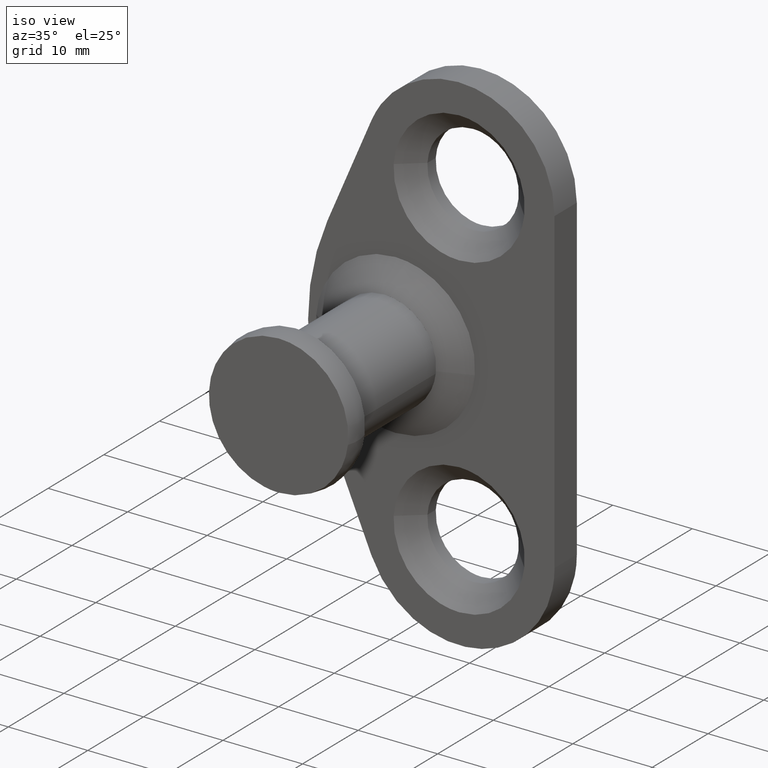
[diagram: clean part render]
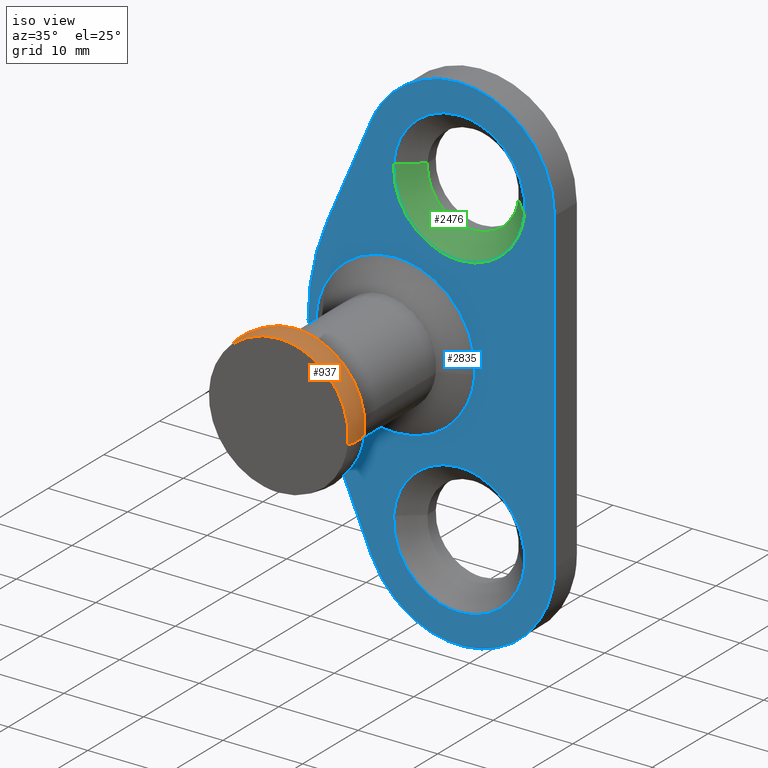
[diagram: same view with three faces highlighted in distinct colors, each labeled with its STEP entity id]
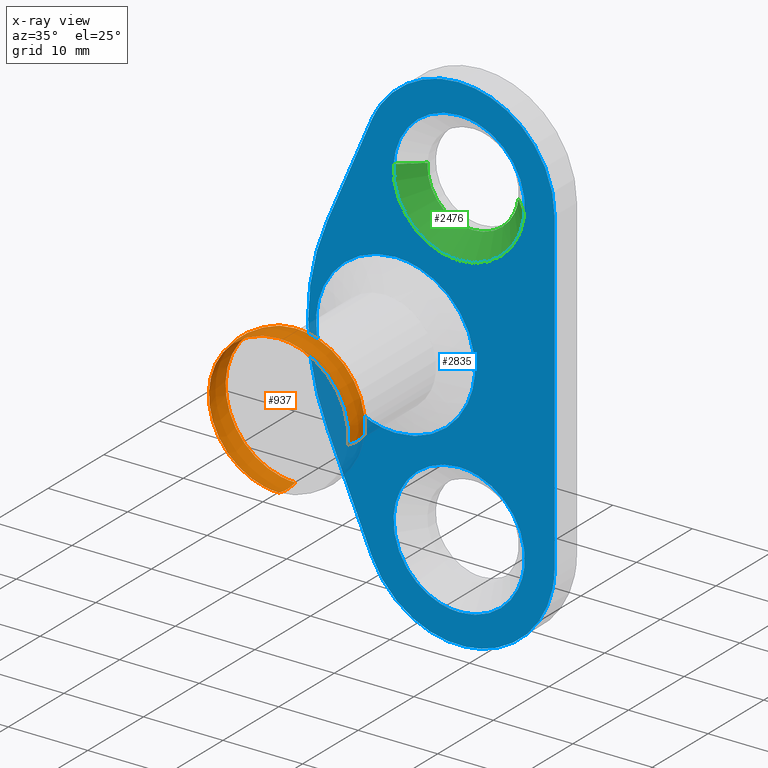
[diagram: x-ray of the same camera — body ghosted, the three highlighted faces saturated]
A machine part, iso view with three faces highlighted in distinct colors.
The next image is the same camera in x-ray (body ghosted, the three faces saturated) — at least one of them is partly hidden behind the body in this view.
Their STEP definitions:

[orange] entity #937 — the highlighted face is a freeform B-spline surface patch.
#780=CARTESIAN_POINT('',(8.661710660135714,-0.149631777815323,-1.006851718927271));
#781=CARTESIAN_POINT('',(8.939804774697754,0.651426895714342,-1.039177843437411));
#782=CARTESIAN_POINT('',(8.939804774697759,1.500000000000000,-1.039177843437411));
#783=CARTESIAN_POINT('',(8.939804774697759,2.348572716536395,-1.039177843437411));
#784=CARTESIAN_POINT('',(8.661710907166555,3.149631066235190,-1.006851747642549));
#785=CARTESIAN_POINT('',(8.720033368274196,-0.149631777815323,-0.505115054714864));
#786=CARTESIAN_POINT('',(9.0,0.651426895714342,-0.521332350512954));
#787=CARTESIAN_POINT('',(9.0,1.500000000000000,-0.521332350512954));
#788=CARTESIAN_POINT('',(9.0,2.348572716536395,-0.521332350512954));
#789=CARTESIAN_POINT('',(8.720033616968395,3.149631066235191,-0.505115069120679));
#790=CARTESIAN_POINT('',(8.720033368274198,-0.149631777815323,0.0));
#791=CARTESIAN_POINT('',(9.000000000000002,0.651426895714342,0.0));
#792=CARTESIAN_POINT('',(9.000000000000002,1.500000000000000,0.0));
#793=CARTESIAN_POINT('',(9.000000000000002,2.348572716536395,0.0));
#794=CARTESIAN_POINT('',(8.720033616968397,3.149631066235190,0.0));
#795=CARTESIAN_POINT('',(8.720033368274198,-0.149631777815323,8.720033368274198));
#796=CARTESIAN_POINT('',(9.000000000000002,0.651426895714342,9.000000000000002));
#797=CARTESIAN_POINT('',(9.000000000000002,1.500000000000000,9.000000000000002));
#798=CARTESIAN_POINT('',(9.000000000000002,2.348572716536395,9.000000000000002));
#799=CARTESIAN_POINT('',(8.720033616968395,3.149631066235190,8.720033616968395));
#800=CARTESIAN_POINT('',(0.0,-0.149631777815323,8.720033368274198));
#801=CARTESIAN_POINT('',(0.0,0.651426895714342,9.000000000000002));
#802=CARTESIAN_POINT('',(0.0,1.500000000000000,9.000000000000002));
#803=CARTESIAN_POINT('',(0.0,2.348572716536395,9.000000000000002));
#804=CARTESIAN_POINT('',(0.0,3.149631066235190,8.720033616968397));
#805=CARTESIAN_POINT('',(-8.720033368274198,-0.149631777815323,8.720033368274198));
#806=CARTESIAN_POINT('',(-9.000000000000002,0.651426895714342,9.000000000000002));
#807=CARTESIAN_POINT('',(-9.000000000000002,1.500000000000000,9.000000000000002));
#808=CARTESIAN_POINT('',(-9.000000000000002,2.348572716536395,9.000000000000002));
#809=CARTESIAN_POINT('',(-8.720033616968395,3.149631066235190,8.720033616968395));
#810=CARTESIAN_POINT('',(-8.720033368274198,-0.149631777815323,0.0));
#811=CARTESIAN_POINT('',(-9.000000000000002,0.651426895714342,0.0));
#812=CARTESIAN_POINT('',(-9.000000000000002,1.500000000000000,0.0));
#813=CARTESIAN_POINT('',(-9.000000000000002,2.348572716536395,0.0));
#814=CARTESIAN_POINT('',(-8.720033616968397,3.149631066235190,0.0));
#815=CARTESIAN_POINT('',(-8.720033368274198,-0.149631777815323,-8.720033368274198));
#816=CARTESIAN_POINT('',(-9.000000000000002,0.651426895714342,-9.000000000000002));
#817=CARTESIAN_POINT('',(-9.000000000000002,1.500000000000000,-9.000000000000002));
#818=CARTESIAN_POINT('',(-9.000000000000002,2.348572716536395,-9.000000000000002));
#819=CARTESIAN_POINT('',(-8.720033616968395,3.149631066235190,-8.720033616968395));
#820=CARTESIAN_POINT('',(0.0,-0.149631777815323,-8.720033368274198));
#821=CARTESIAN_POINT('',(0.0,0.651426895714342,-9.000000000000002));
#822=CARTESIAN_POINT('',(0.0,1.500000000000000,-9.000000000000002));
#823=CARTESIAN_POINT('',(0.0,2.348572716536395,-9.000000000000002));
#824=CARTESIAN_POINT('',(0.0,3.149631066235190,-8.720033616968397));
#832=(BOUNDED_SURFACE()B_SPLINE_SURFACE(2,2,((#780,#785,#790,#795,#800,#805,#810,#815,#820),(#781,#786,#791,#796,#801,#806,#811,#816,#821),(#782,#787,#792,#797,#802,#807,#812,#817,#822),(#783,#788,#793,#798,#803,#808,#813,#818,#823),(#784,#789,#794,#799,#804,#809,#814,#819,#824)),.UNSPECIFIED.,.F.,.F.,.U.)B_SPLINE_SURFACE_WITH_KNOTS((3,2,3),(3,2,2,2,3),(0.0,1.740011391470845,3.480022029154516),(0.0,1.192934810768867,16.104623056200289,31.016311301631720,45.927999547063138),.UNSPECIFIED.)GEOMETRIC_REPRESENTATION_ITEM()RATIONAL_B_SPLINE_SURFACE(((0.884835110487293,0.903035496784282,0.924702622467342,0.653863494927642,0.924702622467342,0.653863494927642,0.924702622467342,0.653863494927642,0.924702622467342),(0.907183579143327,0.925843656469599,0.948058033356251,0.670378264344587,0.948058033356251,0.670378264344587,0.948058033356251,0.670378264344587,0.948058033356251),(0.956886126402807,0.976568547383107,1.0,0.707106781186548,1.0,0.707106781186548,1.0,0.707106781186548,1.0),(0.907183600674877,0.925843678444037,0.948058055857936,0.670378280255681,0.948058055857936,0.670378280255681,0.948058055857936,0.670378280255681,0.948058055857936),(0.884835129850377,0.903035516545650,0.924702642702858,0.653863509236312,0.924702642702858,0.653863509236312,0.924702642702858,0.653863509236312,0.924702642702858)))REPRESENTATION_ITEM('')SURFACE());
#833=CARTESIAN_POINT('',(8.711041115658869,0.000000010307190,-1.012586191310067));
#834=VERTEX_POINT('',#833);
#835=CARTESIAN_POINT('',(0.0,0.000000010299483,8.769696010323770));
#836=VERTEX_POINT('',#835);
#837=CARTESIAN_POINT('',(8.711041115658869,0.000000010307190,-1.012586191310067));
#838=CARTESIAN_POINT('',(8.769696010323770,0.000000010299483,-0.507991912379843));
#839=CARTESIAN_POINT('',(8.769696010323770,0.000000010299483,-2.965939E-016));
#840=CARTESIAN_POINT('',(8.769696010323770,0.000000010299483,8.769696010323770));
#841=CARTESIAN_POINT('',(0.0,0.000000010299483,8.769696010323770));
#849=(BOUNDED_CURVE()B_SPLINE_CURVE(2,(#837,#838,#839,#840,#841),.UNSPECIFIED.,.F.,.U.)B_SPLINE_CURVE_WITH_KNOTS((3,2,3),(0.229999999998251,0.250000000000000,0.500000000000000),.UNSPECIFIED.)CURVE()GEOMETRIC_REPRESENTATION_ITEM()RATIONAL_B_SPLINE_CURVE((0.956886118187217,0.976568542492875,1.0,0.707106781186547,1.0))REPRESENTATION_ITEM(''));
#850=EDGE_CURVE('',#834,#836,#849,.T.);
#851=ORIENTED_EDGE('',*,*,#850,.F.);
#852=CARTESIAN_POINT('',(8.711041108606544,3.000000001005166,-1.012586190489180));
#853=VERTEX_POINT('',#852);
#854=CARTESIAN_POINT('',(8.711041115658869,0.000000010307190,-1.012586191310067));
#855=CARTESIAN_POINT('',(8.939804749065740,0.732320029149684,-1.039178063943664));
#856=CARTESIAN_POINT('',(8.939804749065740,1.500000000000000,-1.039178063943664));
#857=CARTESIAN_POINT('',(8.939804749065740,2.267679977462786,-1.039178063943664));
#858=CARTESIAN_POINT('',(8.711041108606544,3.000000001005167,-1.012586190489180));
#866=(BOUNDED_CURVE()B_SPLINE_CURVE(2,(#854,#855,#856,#857,#858),.UNSPECIFIED.,.F.,.U.)B_SPLINE_CURVE_WITH_KNOTS((3,2,3),(0.437453908709499,0.500000000000000,0.562546091803805),.UNSPECIFIED.)CURVE()GEOMETRIC_REPRESENTATION_ITEM()RATIONAL_B_SPLINE_CURVE((0.889120430718527,0.911697885028001,0.956886118190660,0.911697884657150,0.889120430347950))REPRESENTATION_ITEM(''));
#867=EDGE_CURVE('',#834,#853,#866,.T.);
#868=ORIENTED_EDGE('',*,*,#867,.T.);
#869=CARTESIAN_POINT('',(0.0,3.0,8.769696000000000));
#870=VERTEX_POINT('',#869);
#871=CARTESIAN_POINT('',(8.711041108606544,3.000000001005166,-1.012586190489180));
#872=CARTESIAN_POINT('',(8.769696000000000,3.000000000000001,-0.507991911780721));
#873=CARTESIAN_POINT('',(8.769696000000000,3.0,-2.965939E-016));
#874=CARTESIAN_POINT('',(8.769696000000000,3.0,8.769696000000000));
#875=CARTESIAN_POINT('',(0.0,3.0,8.769696000000000));
#883=(BOUNDED_CURVE()B_SPLINE_CURVE(2,(#871,#872,#873,#874,#875),.UNSPECIFIED.,.F.,.U.)B_SPLINE_CURVE_WITH_KNOTS((3,2,3),(0.229999999998293,0.250000000000000,0.500000000000000),.UNSPECIFIED.)CURVE()GEOMETRIC_REPRESENTATION_ITEM()RATIONAL_B_SPLINE_CURVE((0.956886118187301,0.976568542492924,1.0,0.707106781186548,1.0))REPRESENTATION_ITEM(''));
#884=EDGE_CURVE('',#853,#870,#883,.T.);
#885=ORIENTED_EDGE('',*,*,#884,.T.);
#886=CARTESIAN_POINT('',(0.0,2.999994857243486,-8.769697619081097));
#887=VERTEX_POINT('',#886);
#888=CARTESIAN_POINT('',(0.0,3.0,8.769696000000000));
#889=CARTESIAN_POINT('',(-8.769696000000000,3.0,8.769696000000000));
#890=CARTESIAN_POINT('',(-8.769696000000000,2.999997428621743,-0.000000809540549));
#891=CARTESIAN_POINT('',(-8.769696000000000,2.999994857243487,-8.769697619081097));
#892=CARTESIAN_POINT('',(0.0,2.999994857243486,-8.769697619081097));
#900=(BOUNDED_CURVE()B_SPLINE_CURVE(2,(#888,#889,#890,#891,#892),.UNSPECIFIED.,.F.,.U.)B_SPLINE_CURVE_WITH_KNOTS((3,2,3),(0.500000000000000,0.750000000000000,1.0),.UNSPECIFIED.)CURVE()GEOMETRIC_REPRESENTATION_ITEM()RATIONAL_B_SPLINE_CURVE((1.0,0.707106781186548,1.0,0.707106781186548,1.0))REPRESENTATION_ITEM(''));
#901=EDGE_CURVE('',#870,#887,#900,.T.);
#902=ORIENTED_EDGE('',*,*,#901,.T.);
#903=CARTESIAN_POINT('',(0.0,0.000009323747539,-8.769698939247675));
#904=VERTEX_POINT('',#903);
#905=CARTESIAN_POINT('',(0.0,0.000009323747539,-8.769698939247675));
#906=CARTESIAN_POINT('',(0.0,0.732325025785579,-9.000000000000004));
#907=CARTESIAN_POINT('',(0.0,1.500000000000000,-9.000000000000002));
#908=CARTESIAN_POINT('',(0.0,2.267677218122616,-9.000000000000002));
#909=CARTESIAN_POINT('',(0.0,2.999994857243486,-8.769697619081097));
#917=(BOUNDED_CURVE()B_SPLINE_CURVE(2,(#905,#906,#907,#908,#909),.UNSPECIFIED.,.F.,.U.)B_SPLINE_CURVE_WITH_KNOTS((3,2,3),(0.437454296581557,0.500000000000000,0.562545877605527),.UNSPECIFIED.)CURVE()GEOMETRIC_REPRESENTATION_ITEM()RATIONAL_B_SPLINE_CURVE((0.929181324548143,0.952776038784309,1.0,0.952775907267616,0.929181193127805))REPRESENTATION_ITEM(''));
#918=EDGE_CURVE('',#904,#887,#917,.T.);
#919=ORIENTED_EDGE('',*,*,#918,.F.);
#920=CARTESIAN_POINT('',(0.0,0.000000010299483,8.769696010323770));
#921=CARTESIAN_POINT('',(-8.769696010323770,0.000000010299483,8.769696010323770));
#922=CARTESIAN_POINT('',(-8.769696010323770,0.000004667023511,-0.000001464461953));
#923=CARTESIAN_POINT('',(-8.769696010323770,0.000009323747539,-8.769698939247675));
#924=CARTESIAN_POINT('',(0.0,0.000009323747539,-8.769698939247675));
#932=(BOUNDED_CURVE()B_SPLINE_CURVE(2,(#920,#921,#922,#923,#924),.UNSPECIFIED.,.F.,.U.)B_SPLINE_CURVE_WITH_KNOTS((3,2,3),(0.500000000000000,0.750000000000000,1.0),.UNSPECIFIED.)CURVE()GEOMETRIC_REPRESENTATION_ITEM()RATIONAL_B_SPLINE_CURVE((1.0,0.707106781186547,1.0,0.707106781186547,1.0))REPRESENTATION_ITEM(''));
#933=EDGE_CURVE('',#836,#904,#932,.T.);
#934=ORIENTED_EDGE('',*,*,#933,.F.);
#935=EDGE_LOOP('',(#851,#868,#885,#902,#919,#934));
#936=FACE_OUTER_BOUND('',#935,.T.);
#937=ADVANCED_FACE('',(#936),#832,.T.);

[blue] entity #2835 — the highlighted face is a freeform B-spline surface patch.
#1691=CARTESIAN_POINT('',(-9.969173337332013,21.000000000000931,0.784590957289844));
#1692=VERTEX_POINT('',#1691);
#1698=CARTESIAN_POINT('',(0.0,21.0,-10.0));
#1699=VERTEX_POINT('',#1698);
#1700=CARTESIAN_POINT('',(-9.969173337332013,21.000000000000931,0.784590957289844));
#1701=CARTESIAN_POINT('',(-10.0,21.000000000000004,0.392901070088013));
#1702=CARTESIAN_POINT('',(-10.0,21.0,-2.965939E-016));
#1703=CARTESIAN_POINT('',(-10.000000000000002,21.000000000000004,-10.000000000000002));
#1704=CARTESIAN_POINT('',(0.0,21.0,-10.0));
#1712=(BOUNDED_CURVE()B_SPLINE_CURVE(2,(#1700,#1701,#1702,#1703,#1704),.UNSPECIFIED.,.F.,.U.)B_SPLINE_CURVE_WITH_KNOTS((3,2,3),(0.736331300632380,0.750000000000000,1.0),.UNSPECIFIED.)CURVE()GEOMETRIC_REPRESENTATION_ITEM()RATIONAL_B_SPLINE_CURVE((0.969723356171007,0.983986122580897,1.0,0.707106781186548,1.0))REPRESENTATION_ITEM(''));
#1713=EDGE_CURVE('',#1692,#1699,#1712,.T.);
#1715=CARTESIAN_POINT('',(9.969173337332013,21.000000000000931,-0.784590957289845));
#1716=VERTEX_POINT('',#1715);
#1717=CARTESIAN_POINT('',(0.0,21.0,-10.0));
#1718=CARTESIAN_POINT('',(9.243904916561121,20.999999999999996,-9.999999999999998));
#1719=CARTESIAN_POINT('',(9.969173337332013,21.000000000000927,-0.784590957289845));
#1727=(BOUNDED_CURVE()B_SPLINE_CURVE(2,(#1717,#1718,#1719),.UNSPECIFIED.,.F.,.U.)B_SPLINE_CURVE_WITH_KNOTS((3,3),(0.0,0.236331300632380),.UNSPECIFIED.)CURVE()GEOMETRIC_REPRESENTATION_ITEM()RATIONAL_B_SPLINE_CURVE((1.0,0.723120658605651,0.969723356171007))REPRESENTATION_ITEM(''));
#1728=EDGE_CURVE('',#1699,#1716,#1727,.T.);
#1774=CARTESIAN_POINT('',(0.0,21.0,10.0));
#1775=VERTEX_POINT('',#1774);
#1776=CARTESIAN_POINT('',(9.969173337332013,21.000000000000931,-0.784590957289845));
#1777=CARTESIAN_POINT('',(10.0,21.000000000000004,-0.392901070088014));
#1778=CARTESIAN_POINT('',(10.0,21.0,-2.965939E-016));
#1779=CARTESIAN_POINT('',(10.000000000000002,21.000000000000004,10.000000000000002));
#1780=CARTESIAN_POINT('',(0.0,21.0,10.0));
#1788=(BOUNDED_CURVE()B_SPLINE_CURVE(2,(#1776,#1777,#1778,#1779,#1780),.UNSPECIFIED.,.F.,.U.)B_SPLINE_CURVE_WITH_KNOTS((3,2,3),(0.236331300632380,0.250000000000000,0.500000000000000),.UNSPECIFIED.)CURVE()GEOMETRIC_REPRESENTATION_ITEM()RATIONAL_B_SPLINE_CURVE((0.969723356171007,0.983986122580897,1.0,0.707106781186548,1.0))REPRESENTATION_ITEM(''));
#1789=EDGE_CURVE('',#1716,#1775,#1788,.T.);
#1791=CARTESIAN_POINT('',(0.0,21.0,10.0));
#1792=CARTESIAN_POINT('',(-9.243904916561130,21.000000000000004,10.000000000000002));
#1793=CARTESIAN_POINT('',(-9.969173337332013,21.000000000000931,0.784590957289844));
#1801=(BOUNDED_CURVE()B_SPLINE_CURVE(2,(#1791,#1792,#1793),.UNSPECIFIED.,.F.,.U.)B_SPLINE_CURVE_WITH_KNOTS((3,3),(0.500000000000000,0.736331300632380),.UNSPECIFIED.)CURVE()GEOMETRIC_REPRESENTATION_ITEM()RATIONAL_B_SPLINE_CURVE((1.0,0.723120658605650,0.969723356171008))REPRESENTATION_ITEM(''));
#1802=EDGE_CURVE('',#1775,#1692,#1801,.T.);
#2045=CARTESIAN_POINT('',(16.192328592501092,20.999999999989392,-20.973782436001819));
#2046=VERTEX_POINT('',#2045);
#2052=CARTESIAN_POINT('',(8.0,21.0,-11.749999999999909));
#2053=VERTEX_POINT('',#2052);
#2054=CARTESIAN_POINT('',(16.192328592501092,20.999999999989395,-20.973782436001819));
#2055=CARTESIAN_POINT('',(16.250000000000096,20.999999999999993,-20.488598987211432));
#2056=CARTESIAN_POINT('',(16.250000000000089,21.0,-20.0));
#2057=CARTESIAN_POINT('',(16.250000000000089,21.000000000000007,-11.749999999999909));
#2058=CARTESIAN_POINT('',(8.0,21.0,-11.749999999999909));
#2066=(BOUNDED_CURVE()B_SPLINE_CURVE(2,(#2054,#2055,#2056,#2057,#2058),.UNSPECIFIED.,.F.,.U.)B_SPLINE_CURVE_WITH_KNOTS((3,2,3),(0.229562473512249,0.250000000000000,0.500000000000000),.UNSPECIFIED.)CURVE()GEOMETRIC_REPRESENTATION_ITEM()RATIONAL_B_SPLINE_CURVE((0.956026754181230,0.976055948329669,1.0,0.707106781186547,1.0))REPRESENTATION_ITEM(''));
#2067=EDGE_CURVE('',#2046,#2053,#2066,.T.);
#2069=CARTESIAN_POINT('',(-0.234612086995449,20.999999999972200,-19.496349548626540));
#2070=VERTEX_POINT('',#2069);
#2071=CARTESIAN_POINT('',(8.0,21.0,-11.749999999999909));
#2072=CARTESIAN_POINT('',(0.239174948423016,20.999999999999993,-11.749999999999909));
#2073=CARTESIAN_POINT('',(-0.234612086995449,20.999999999972196,-19.496349548626540));
#2081=(BOUNDED_CURVE()B_SPLINE_CURVE(2,(#2071,#2072,#2073),.UNSPECIFIED.,.F.,.U.)B_SPLINE_CURVE_WITH_KNOTS((3,3),(0.500000000000000,0.739332962233201),.UNSPECIFIED.)CURVE()GEOMETRIC_REPRESENTATION_ITEM()RATIONAL_B_SPLINE_CURVE((1.0,0.719603993293437,0.976072041654411))REPRESENTATION_ITEM(''));
#2082=EDGE_CURVE('',#2053,#2070,#2081,.T.);
#2115=CARTESIAN_POINT('',(8.0,21.0,-28.250000000000089));
#2116=VERTEX_POINT('',#2115);
#2117=CARTESIAN_POINT('',(-0.234612086995449,20.999999999972200,-19.496349548626547));
#2118=CARTESIAN_POINT('',(-0.250000000000090,21.000000000000004,-19.747939702576872));
#2119=CARTESIAN_POINT('',(-0.250000000000090,21.0,-20.0));
#2120=CARTESIAN_POINT('',(-0.250000000000090,21.000000000000007,-28.250000000000089));
#2121=CARTESIAN_POINT('',(8.0,21.0,-28.250000000000089));
#2129=(BOUNDED_CURVE()B_SPLINE_CURVE(2,(#2117,#2118,#2119,#2120,#2121),.UNSPECIFIED.,.F.,.U.)B_SPLINE_CURVE_WITH_KNOTS((3,2,3),(0.739332962233202,0.750000000000000,1.0),.UNSPECIFIED.)CURVE()GEOMETRIC_REPRESENTATION_ITEM()RATIONAL_B_SPLINE_CURVE((0.976072041654414,0.987502787893111,1.0,0.707106781186547,1.0))REPRESENTATION_ITEM(''));
#2130=EDGE_CURVE('',#2070,#2116,#2129,.T.);
#2132=CARTESIAN_POINT('',(8.0,21.0,-28.250000000000089));
#2133=CARTESIAN_POINT('',(15.327439838950616,21.0,-28.250000000000085));
#2134=CARTESIAN_POINT('',(16.192328592501092,20.999999999989395,-20.973782436001819));
#2142=(BOUNDED_CURVE()B_SPLINE_CURVE(2,(#2132,#2133,#2134),.UNSPECIFIED.,.F.,.U.)B_SPLINE_CURVE_WITH_KNOTS((3,3),(0.0,0.229562473512249),.UNSPECIFIED.)CURVE()GEOMETRIC_REPRESENTATION_ITEM()RATIONAL_B_SPLINE_CURVE((1.0,0.731050832856878,0.956026754181230))REPRESENTATION_ITEM(''));
#2143=EDGE_CURVE('',#2116,#2046,#2142,.T.);
#2373=CARTESIAN_POINT('',(16.192328592501081,20.999999999989392,19.026217563998181));
#2374=VERTEX_POINT('',#2373);
#2380=CARTESIAN_POINT('',(8.0,21.0,28.250000000000089));
#2381=VERTEX_POINT('',#2380);
#2382=CARTESIAN_POINT('',(16.192328592501081,20.999999999989395,19.026217563998184));
#2383=CARTESIAN_POINT('',(16.250000000000096,20.999999999999993,19.511401012788571));
#2384=CARTESIAN_POINT('',(16.250000000000089,21.0,20.0));
#2385=CARTESIAN_POINT('',(16.250000000000089,21.000000000000007,28.250000000000089));
#2386=CARTESIAN_POINT('',(8.0,21.0,28.250000000000089));
#2394=(BOUNDED_CURVE()B_SPLINE_CURVE(2,(#2382,#2383,#2384,#2385,#2386),.UNSPECIFIED.,.F.,.U.)B_SPLINE_CURVE_WITH_KNOTS((3,2,3),(0.229562473512249,0.250000000000000,0.500000000000000),.UNSPECIFIED.)CURVE()GEOMETRIC_REPRESENTATION_ITEM()RATIONAL_B_SPLINE_CURVE((0.956026754181230,0.976055948329669,1.0,0.707106781186547,1.0))REPRESENTATION_ITEM(''));
#2395=EDGE_CURVE('',#2374,#2381,#2394,.T.);
#2397=CARTESIAN_POINT('',(-0.234612086995450,20.999999999972189,20.503650451373460));
#2398=VERTEX_POINT('',#2397);
#2399=CARTESIAN_POINT('',(8.0,21.0,28.250000000000089));
#2400=CARTESIAN_POINT('',(0.239174948423016,20.999999999999993,28.250000000000089));
#2401=CARTESIAN_POINT('',(-0.234612086995450,20.999999999972196,20.503650451373456));
#2409=(BOUNDED_CURVE()B_SPLINE_CURVE(2,(#2399,#2400,#2401),.UNSPECIFIED.,.F.,.U.)B_SPLINE_CURVE_WITH_KNOTS((3,3),(0.500000000000000,0.739332962233201),.UNSPECIFIED.)CURVE()GEOMETRIC_REPRESENTATION_ITEM()RATIONAL_B_SPLINE_CURVE((1.0,0.719603993293437,0.976072041654411))REPRESENTATION_ITEM(''));
#2410=EDGE_CURVE('',#2381,#2398,#2409,.T.);
#2443=CARTESIAN_POINT('',(8.0,21.0,11.749999999999909));
#2444=VERTEX_POINT('',#2443);
#2445=CARTESIAN_POINT('',(-0.234612086995450,20.999999999972189,20.503650451373456));
#2446=CARTESIAN_POINT('',(-0.250000000000090,21.000000000000004,20.252060297423135));
#2447=CARTESIAN_POINT('',(-0.250000000000090,21.0,20.0));
#2448=CARTESIAN_POINT('',(-0.250000000000090,21.000000000000007,11.749999999999909));
#2449=CARTESIAN_POINT('',(8.0,21.0,11.749999999999909));
#2457=(BOUNDED_CURVE()B_SPLINE_CURVE(2,(#2445,#2446,#2447,#2448,#2449),.UNSPECIFIED.,.F.,.U.)B_SPLINE_CURVE_WITH_KNOTS((3,2,3),(0.739332962233202,0.750000000000000,1.0),.UNSPECIFIED.)CURVE()GEOMETRIC_REPRESENTATION_ITEM()RATIONAL_B_SPLINE_CURVE((0.976072041654414,0.987502787893111,1.0,0.707106781186547,1.0))REPRESENTATION_ITEM(''));
#2458=EDGE_CURVE('',#2398,#2444,#2457,.T.);
#2460=CARTESIAN_POINT('',(8.0,21.0,11.749999999999909));
#2461=CARTESIAN_POINT('',(15.327439838950616,21.0,11.749999999999911));
#2462=CARTESIAN_POINT('',(16.192328592501081,20.999999999989395,19.026217563998184));
#2470=(BOUNDED_CURVE()B_SPLINE_CURVE(2,(#2460,#2461,#2462),.UNSPECIFIED.,.F.,.U.)B_SPLINE_CURVE_WITH_KNOTS((3,3),(0.0,0.229562473512249),.UNSPECIFIED.)CURVE()GEOMETRIC_REPRESENTATION_ITEM()RATIONAL_B_SPLINE_CURVE((1.0,0.731050832856878,0.956026754181230))REPRESENTATION_ITEM(''));
#2471=EDGE_CURVE('',#2444,#2374,#2470,.T.);
#2615=CARTESIAN_POINT('',(20.0,21.0,20.0));
#2616=VERTEX_POINT('',#2615);
#2622=CARTESIAN_POINT('',(20.0,21.0,-19.999999620397048));
#2623=VERTEX_POINT('',#2622);
#2624=CARTESIAN_POINT('',(20.0,21.0,-19.999999620397048));
#2625=CARTESIAN_POINT('',(20.0,21.0,20.0));
#2626=QUASI_UNIFORM_CURVE('',1,(#2624,#2625),.UNSPECIFIED.,.F.,.U.);
#2627=EDGE_CURVE('',#2623,#2616,#2626,.T.);
#2657=CARTESIAN_POINT('',(-3.026028000000000,21.0,-24.735684000000099));
#2658=VERTEX_POINT('',#2657);
#2659=CARTESIAN_POINT('',(-3.026027999999988,21.0,-24.735684000000091));
#2660=CARTESIAN_POINT('',(0.834803822286927,21.000000000000004,-33.724804972499285));
#2661=CARTESIAN_POINT('',(10.417401911143459,21.0,-31.753984816916571));
#2662=CARTESIAN_POINT('',(20.0,21.000000000000004,-29.783164661333853));
#2663=CARTESIAN_POINT('',(20.0,21.0,-19.999999620397048));
#2671=(BOUNDED_CURVE()B_SPLINE_CURVE(2,(#2659,#2660,#2661,#2662,#2663),.UNSPECIFIED.,.F.,.U.)B_SPLINE_CURVE_WITH_KNOTS((3,2,3),(0.0,0.500000000000000,1.0),.UNSPECIFIED.)CURVE()GEOMETRIC_REPRESENTATION_ITEM()RATIONAL_B_SPLINE_CURVE((1.0,0.775064564814428,1.0,0.775064564814428,1.0))REPRESENTATION_ITEM(''));
#2672=EDGE_CURVE('',#2658,#2623,#2671,.T.);
#2689=CARTESIAN_POINT('',(-8.565069783469122,21.0,-11.839211504146100));
#2690=VERTEX_POINT('',#2689);
#2691=CARTESIAN_POINT('',(-8.565069783469122,21.0,-11.839211504146100));
#2692=CARTESIAN_POINT('',(-3.026028000000000,21.0,-24.735684000000099));
#2693=QUASI_UNIFORM_CURVE('',1,(#2691,#2692),.UNSPECIFIED.,.F.,.U.);
#2694=EDGE_CURVE('',#2690,#2658,#2693,.T.);
#2720=CARTESIAN_POINT('',(-8.565070000000109,21.0,11.839212000000000));
#2721=VERTEX_POINT('',#2720);
#2722=CARTESIAN_POINT('',(-8.565070000000102,21.0,11.839211999999989));
#2723=CARTESIAN_POINT('',(-13.650017496232248,21.000000000000004,0.000000201426849));
#2724=CARTESIAN_POINT('',(-8.565069783469118,21.0,-11.839211504146110));
#2732=(BOUNDED_CURVE()B_SPLINE_CURVE(2,(#2722,#2723,#2724),.UNSPECIFIED.,.F.,.U.)CURVE()GEOMETRIC_REPRESENTATION_ITEM()QUASI_UNIFORM_CURVE()RATIONAL_B_SPLINE_CURVE((1.0,0.918835655169432,1.0))REPRESENTATION_ITEM(''));
#2733=EDGE_CURVE('',#2721,#2690,#2732,.T.);
#2750=CARTESIAN_POINT('',(-3.026028000000000,21.0,24.735684999999901));
#2751=VERTEX_POINT('',#2750);
#2752=CARTESIAN_POINT('',(-3.026028000000000,21.0,24.735684999999901));
#2753=CARTESIAN_POINT('',(-8.565070000000109,21.0,11.839212000000000));
#2754=QUASI_UNIFORM_CURVE('',1,(#2752,#2753),.UNSPECIFIED.,.F.,.U.);
#2755=EDGE_CURVE('',#2751,#2721,#2754,.T.);
#2785=CARTESIAN_POINT('',(19.999999999999979,21.0,20.0));
#2786=CARTESIAN_POINT('',(20.000000505787099,21.0,29.783165299123507));
#2787=CARTESIAN_POINT('',(10.417402214982440,21.0,31.753985754426889));
#2788=CARTESIAN_POINT('',(0.834803924177780,21.0,33.724806209730268));
#2789=CARTESIAN_POINT('',(-3.026028000000005,21.0,24.735684999999911));
#2797=(BOUNDED_CURVE()B_SPLINE_CURVE(2,(#2785,#2786,#2787,#2788,#2789),.UNSPECIFIED.,.F.,.U.)B_SPLINE_CURVE_WITH_KNOTS((3,2,3),(0.0,0.500000000000000,1.0),.UNSPECIFIED.)CURVE()GEOMETRIC_REPRESENTATION_ITEM()RATIONAL_B_SPLINE_CURVE((1.0,0.775064556647392,1.0,0.775064556647392,1.0))REPRESENTATION_ITEM(''));
#2798=EDGE_CURVE('',#2616,#2751,#2797,.T.);
#2804=CARTESIAN_POINT('',(-12.548449897382559,21.0,35.194043313107947));
#2805=CARTESIAN_POINT('',(21.548450769377311,21.0,35.194043313107947));
#2806=CARTESIAN_POINT('',(-12.548449897382559,21.0,-35.194039910053583));
#2807=CARTESIAN_POINT('',(21.548450769377311,21.0,-35.194039910053583));
#2808=B_SPLINE_SURFACE_WITH_KNOTS('',1,1,((#2804,#2806),(#2805,#2807)),.UNSPECIFIED.,.F.,.F.,.U.,(2,2),(2,2),(0.0,34.096900666759872),(0.0,70.388083223161516),.UNSPECIFIED.);
#2809=ORIENTED_EDGE('',*,*,#2798,.T.);
#2810=ORIENTED_EDGE('',*,*,#2755,.T.);
#2811=ORIENTED_EDGE('',*,*,#2733,.T.);
#2812=ORIENTED_EDGE('',*,*,#2694,.T.);
#2813=ORIENTED_EDGE('',*,*,#2672,.T.);
#2814=ORIENTED_EDGE('',*,*,#2627,.T.);
#2815=EDGE_LOOP('',(#2809,#2810,#2811,#2812,#2813,#2814));
#2816=FACE_OUTER_BOUND('',#2815,.T.);
#2817=ORIENTED_EDGE('',*,*,#2410,.F.);
#2818=ORIENTED_EDGE('',*,*,#2395,.F.);
#2819=ORIENTED_EDGE('',*,*,#2471,.F.);
#2820=ORIENTED_EDGE('',*,*,#2458,.F.);
#2821=EDGE_LOOP('',(#2817,#2818,#2819,#2820));
#2822=FACE_BOUND('',#2821,.T.);
#2823=ORIENTED_EDGE('',*,*,#2082,.F.);
#2824=ORIENTED_EDGE('',*,*,#2067,.F.);
#2825=ORIENTED_EDGE('',*,*,#2143,.F.);
#2826=ORIENTED_EDGE('',*,*,#2130,.F.);
#2827=EDGE_LOOP('',(#2823,#2824,#2825,#2826));
#2828=FACE_BOUND('',#2827,.T.);
#2829=ORIENTED_EDGE('',*,*,#1802,.F.);
#2830=ORIENTED_EDGE('',*,*,#1789,.F.);
#2831=ORIENTED_EDGE('',*,*,#1728,.F.);
#2832=ORIENTED_EDGE('',*,*,#1713,.F.);
#2833=EDGE_LOOP('',(#2829,#2830,#2831,#2832));
#2834=FACE_BOUND('',#2833,.T.);
#2835=ADVANCED_FACE('',(#2816,#2822,#2828,#2834),#2808,.F.);

[green] entity #2476 — the highlighted face is a freeform B-spline surface patch.
#2184=CARTESIAN_POINT('',(2.260724909066910,23.499999999973031,20.351029102427528));
#2185=VERTEX_POINT('',#2184);
#2266=CARTESIAN_POINT('',(13.709804776591451,23.499999999995349,19.321303150686589));
#2267=VERTEX_POINT('',#2266);
#2317=CARTESIAN_POINT('',(8.0,23.500000000000000,14.249999999999909));
#2318=VERTEX_POINT('',#2317);
#2319=CARTESIAN_POINT('',(2.260724909066910,23.499999999973024,20.351029102427525));
#2320=CARTESIAN_POINT('',(2.249999999999910,23.500000000000000,20.175678389169995));
#2321=CARTESIAN_POINT('',(2.249999999999910,23.500000000000000,20.0));
#2322=CARTESIAN_POINT('',(2.249999999999911,23.500000000000004,14.249999999999911));
#2323=CARTESIAN_POINT('',(8.0,23.500000000000000,14.249999999999909));
#2331=(BOUNDED_CURVE()B_SPLINE_CURVE(2,(#2319,#2320,#2321,#2322,#2323),.UNSPECIFIED.,.F.,.U.)B_SPLINE_CURVE_WITH_KNOTS((3,2,3),(0.739332962229790,0.750000000000000,1.0),.UNSPECIFIED.)CURVE()GEOMETRIC_REPRESENTATION_ITEM()RATIONAL_B_SPLINE_CURVE((0.976072041647101,0.987502787889114,1.0,0.707106781186548,1.0))REPRESENTATION_ITEM(''));
#2332=EDGE_CURVE('',#2185,#2318,#2331,.T.);
#2334=CARTESIAN_POINT('',(8.0,23.500000000000000,14.249999999999909));
#2335=CARTESIAN_POINT('',(13.107003524154701,23.499999999999996,14.249999999999911));
#2336=CARTESIAN_POINT('',(13.709804776591447,23.499999999995349,19.321303150686585));
#2344=(BOUNDED_CURVE()B_SPLINE_CURVE(2,(#2334,#2335,#2336),.UNSPECIFIED.,.F.,.U.)B_SPLINE_CURVE_WITH_KNOTS((3,3),(0.0,0.229562473513484),.UNSPECIFIED.)CURVE()GEOMETRIC_REPRESENTATION_ITEM()RATIONAL_B_SPLINE_CURVE((1.0,0.731050832855431,0.956026754183651))REPRESENTATION_ITEM(''));
#2345=EDGE_CURVE('',#2318,#2267,#2344,.T.);
#2373=CARTESIAN_POINT('',(16.192328592501081,20.999999999989392,19.026217563998181));
#2374=VERTEX_POINT('',#2373);
#2375=CARTESIAN_POINT('',(13.709804776591451,23.499999999995349,19.321303150686589));
#2376=CARTESIAN_POINT('',(16.192328592501081,20.999999999989392,19.026217563998181));
#2377=QUASI_UNIFORM_CURVE('',1,(#2375,#2376),.UNSPECIFIED.,.F.,.U.);
#2378=EDGE_CURVE('',#2267,#2374,#2377,.T.);
#2397=CARTESIAN_POINT('',(-0.234612086995450,20.999999999972189,20.503650451373460));
#2398=VERTEX_POINT('',#2397);
#2412=CARTESIAN_POINT('',(2.260724909066910,23.499999999973031,20.351029102427528));
#2413=CARTESIAN_POINT('',(-0.234612086995450,20.999999999972189,20.503650451373460));
#2414=QUASI_UNIFORM_CURVE('',1,(#2412,#2413),.UNSPECIFIED.,.F.,.U.);
#2415=EDGE_CURVE('',#2185,#2398,#2414,.T.);
#2422=CARTESIAN_POINT('',(2.323108333975546,23.562500000000000,20.347213568604509));
#2423=CARTESIAN_POINT('',(1.975894765371042,23.562500000000004,14.670321902580055));
#2424=CARTESIAN_POINT('',(7.652786431395495,23.562500000000000,14.323108333975551));
#2425=CARTESIAN_POINT('',(13.013778604149737,23.562500000000004,13.995216006083657));
#2426=CARTESIAN_POINT('',(13.647741681193438,23.562500000000007,19.328680290389674));
#2427=CARTESIAN_POINT('',(-0.298555097504393,20.935937499999991,20.507561373226530));
#2428=CARTESIAN_POINT('',(-0.806116470730920,20.935937499999991,12.209006275722134));
#2429=CARTESIAN_POINT('',(7.492438626773472,20.935937499999991,11.701444902495609));
#2430=CARTESIAN_POINT('',(15.329207679307869,20.935937499999991,11.222127573728375));
#2431=CARTESIAN_POINT('',(16.255943265283005,20.935937499999994,19.018655995924043));
#2439=(BOUNDED_SURFACE()B_SPLINE_SURFACE(2,1,((#2422,#2427),(#2423,#2428),(#2424,#2429),(#2425,#2430),(#2426,#2431)),.UNSPECIFIED.,.F.,.F.,.U.)B_SPLINE_SURFACE_WITH_KNOTS((3,2,3),(2,2),(0.0,13.775189783670390,26.999371975993959),(0.0,3.714520309920592),.UNSPECIFIED.)GEOMETRIC_REPRESENTATION_ITEM()RATIONAL_B_SPLINE_SURFACE(((1.0,1.0),(0.707106781186548,0.707106781186548),(1.0,1.0),(0.718822509939086,0.718822509939086),(0.977505800795127,0.977505800795127)))REPRESENTATION_ITEM('')SURFACE());
#2440=ORIENTED_EDGE('',*,*,#2345,.F.);
#2441=ORIENTED_EDGE('',*,*,#2332,.F.);
#2442=ORIENTED_EDGE('',*,*,#2415,.T.);
#2443=CARTESIAN_POINT('',(8.0,21.0,11.749999999999909));
#2444=VERTEX_POINT('',#2443);
#2445=CARTESIAN_POINT('',(-0.234612086995450,20.999999999972189,20.503650451373456));
#2446=CARTESIAN_POINT('',(-0.250000000000090,21.000000000000004,20.252060297423135));
#2447=CARTESIAN_POINT('',(-0.250000000000090,21.0,20.0));
#2448=CARTESIAN_POINT('',(-0.250000000000090,21.000000000000007,11.749999999999909));
#2449=CARTESIAN_POINT('',(8.0,21.0,11.749999999999909));
#2457=(BOUNDED_CURVE()B_SPLINE_CURVE(2,(#2445,#2446,#2447,#2448,#2449),.UNSPECIFIED.,.F.,.U.)B_SPLINE_CURVE_WITH_KNOTS((3,2,3),(0.739332962233202,0.750000000000000,1.0),.UNSPECIFIED.)CURVE()GEOMETRIC_REPRESENTATION_ITEM()RATIONAL_B_SPLINE_CURVE((0.976072041654414,0.987502787893111,1.0,0.707106781186547,1.0))REPRESENTATION_ITEM(''));
#2458=EDGE_CURVE('',#2398,#2444,#2457,.T.);
#2459=ORIENTED_EDGE('',*,*,#2458,.T.);
#2460=CARTESIAN_POINT('',(8.0,21.0,11.749999999999909));
#2461=CARTESIAN_POINT('',(15.327439838950616,21.0,11.749999999999911));
#2462=CARTESIAN_POINT('',(16.192328592501081,20.999999999989395,19.026217563998184));
#2470=(BOUNDED_CURVE()B_SPLINE_CURVE(2,(#2460,#2461,#2462),.UNSPECIFIED.,.F.,.U.)B_SPLINE_CURVE_WITH_KNOTS((3,3),(0.0,0.229562473512249),.UNSPECIFIED.)CURVE()GEOMETRIC_REPRESENTATION_ITEM()RATIONAL_B_SPLINE_CURVE((1.0,0.731050832856878,0.956026754181230))REPRESENTATION_ITEM(''));
#2471=EDGE_CURVE('',#2444,#2374,#2470,.T.);
#2472=ORIENTED_EDGE('',*,*,#2471,.T.);
#2473=ORIENTED_EDGE('',*,*,#2378,.F.);
#2474=EDGE_LOOP('',(#2440,#2441,#2442,#2459,#2472,#2473));
#2475=FACE_OUTER_BOUND('',#2474,.T.);
#2476=ADVANCED_FACE('',(#2475),#2439,.F.);